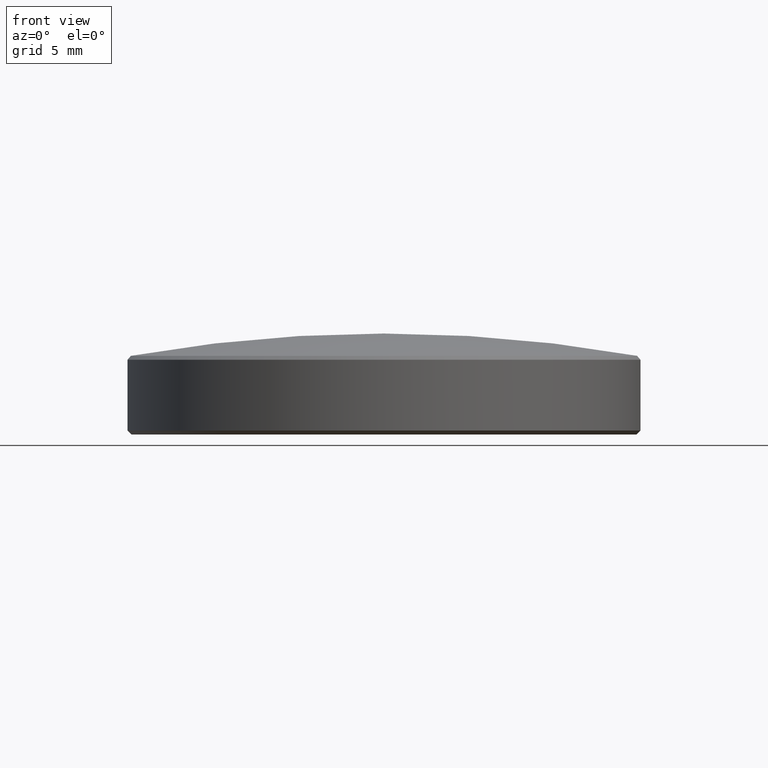
[diagram: clean part render]
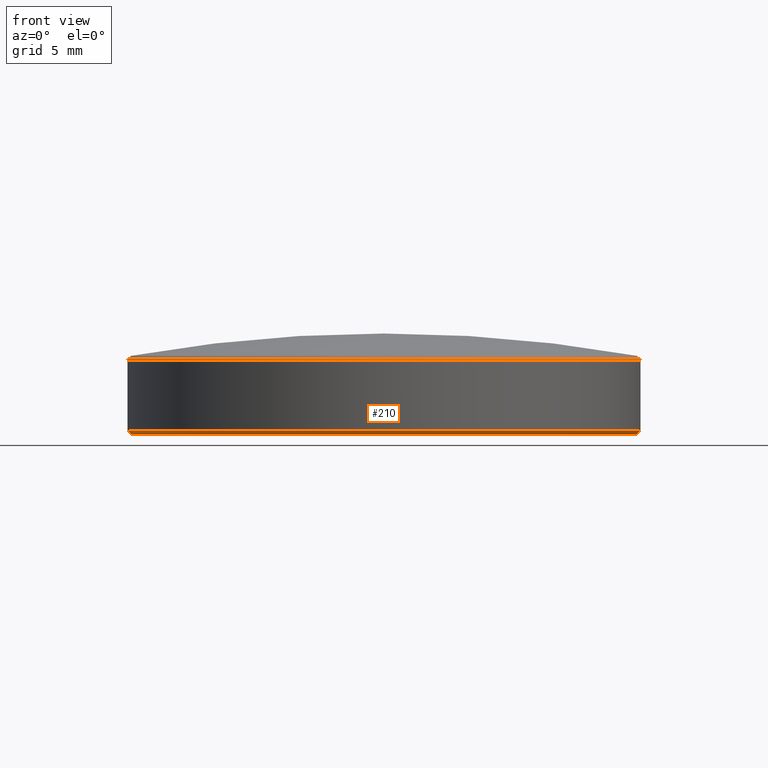
[diagram: same view with one face highlighted and labeled with its STEP entity id]
A machine part, front view. The second image highlights one B-rep face of the part: STEP entity #210.
In plain terms, the highlighted conical surface has half-angle 45 deg.
Its self-contained STEP definition (entity closure, byte-faithful):
#7 = AXIS2_PLACEMENT_3D ( 'NONE', #35, #199, #96 ) ;
#8 = DIRECTION ( 'NONE',  ( 1.000000000000000000, 0.000000000000000000, 0.000000000000000000 ) ) ;
#9 = CIRCLE ( 'NONE', #76, 12.50000000000000178 ) ;
#11 = CARTESIAN_POINT ( 'NONE',  ( -12.69999999999999929, 1.555301434917138433E-15, 0.1999999999999987899 ) ) ;
#17 = LINE ( 'NONE', #98, #226 ) ;
#20 = DIRECTION ( 'NONE',  ( -0.000000000000000000, -0.000000000000000000, 1.000000000000000000 ) ) ;
#24 = AXIS2_PLACEMENT_3D ( 'NONE', #77, #20, #116 ) ;
#26 = EDGE_LOOP ( 'NONE', ( #66, #128, #233, #111 ) ) ;
#30 = VERTEX_POINT ( 'NONE', #258 ) ;
#35 = CARTESIAN_POINT ( 'NONE',  ( 0.000000000000000000, 0.000000000000000000, 0.1999999999999987899 ) ) ;
#38 = CIRCLE ( 'NONE', #24, 12.69999999999999929 ) ;
#55 = CARTESIAN_POINT ( 'NONE',  ( -12.50000000000000178, 1.543054966925665273E-15, 0.000000000000000000 ) ) ;
#66 = ORIENTED_EDGE ( 'NONE', *, *, #82, .F. ) ;
#72 = VERTEX_POINT ( 'NONE', #55 ) ;
#76 = AXIS2_PLACEMENT_3D ( 'NONE', #212, #107, #8 ) ;
#77 = CARTESIAN_POINT ( 'NONE',  ( 0.000000000000000000, 0.000000000000000000, 0.1999999999999987899 ) ) ;
#82 = EDGE_CURVE ( 'NONE', #72, #238, #134, .T. ) ;
#84 = EDGE_CURVE ( 'NONE', #172, #72, #9, .T. ) ;
#96 = DIRECTION ( 'NONE',  ( 1.000000000000000000, 0.000000000000000000, 0.000000000000000000 ) ) ;
#98 = CARTESIAN_POINT ( 'NONE',  ( 12.69999999999999929, 0.000000000000000000, 0.1999999999999987899 ) ) ;
#100 = CARTESIAN_POINT ( 'NONE',  ( -12.69999999999999929, 0.000000000000000000, 0.1999999999999987899 ) ) ;
#107 = DIRECTION ( 'NONE',  ( -0.000000000000000000, -0.000000000000000000, -1.000000000000000000 ) ) ;
#111 = ORIENTED_EDGE ( 'NONE', *, *, #230, .F. ) ;
#116 = DIRECTION ( 'NONE',  ( 1.000000000000000000, 0.000000000000000000, 0.000000000000000000 ) ) ;
#118 = CONICAL_SURFACE ( 'NONE', #7, 12.69999999999999929, 0.7853981633974439491 ) ;
#123 = VECTOR ( 'NONE', #177, 1000.000000000000000 ) ;
#128 = ORIENTED_EDGE ( 'NONE', *, *, #84, .F. ) ;
#134 = LINE ( 'NONE', #11, #123 ) ;
#140 = CARTESIAN_POINT ( 'NONE',  ( 12.50000000000000178, 0.000000000000000000, 0.000000000000000000 ) ) ;
#172 = VERTEX_POINT ( 'NONE', #140 ) ;
#177 = DIRECTION ( 'NONE',  ( -0.7071067811865444641, 8.659560562354895880E-17, 0.7071067811865505703 ) ) ;
#182 = DIRECTION ( 'NONE',  ( 0.7071067811865444641, 0.000000000000000000, 0.7071067811865505703 ) ) ;
#199 = DIRECTION ( 'NONE',  ( -0.000000000000000000, -0.000000000000000000, 1.000000000000000000 ) ) ;
#210 = ADVANCED_FACE ( 'NONE', ( #241 ), #118, .T. ) ;
#212 = CARTESIAN_POINT ( 'NONE',  ( 0.000000000000000000, 0.000000000000000000, 0.000000000000000000 ) ) ;
#226 = VECTOR ( 'NONE', #182, 1000.000000000000000 ) ;
#230 = EDGE_CURVE ( 'NONE', #238, #30, #38, .T. ) ;
#233 = ORIENTED_EDGE ( 'NONE', *, *, #249, .T. ) ;
#238 = VERTEX_POINT ( 'NONE', #100 ) ;
#241 = FACE_OUTER_BOUND ( 'NONE', #26, .T. ) ;
#249 = EDGE_CURVE ( 'NONE', #172, #30, #17, .T. ) ;
#258 = CARTESIAN_POINT ( 'NONE',  ( 12.69999999999999929, 1.555301434917138433E-15, 0.1999999999999987899 ) ) ;